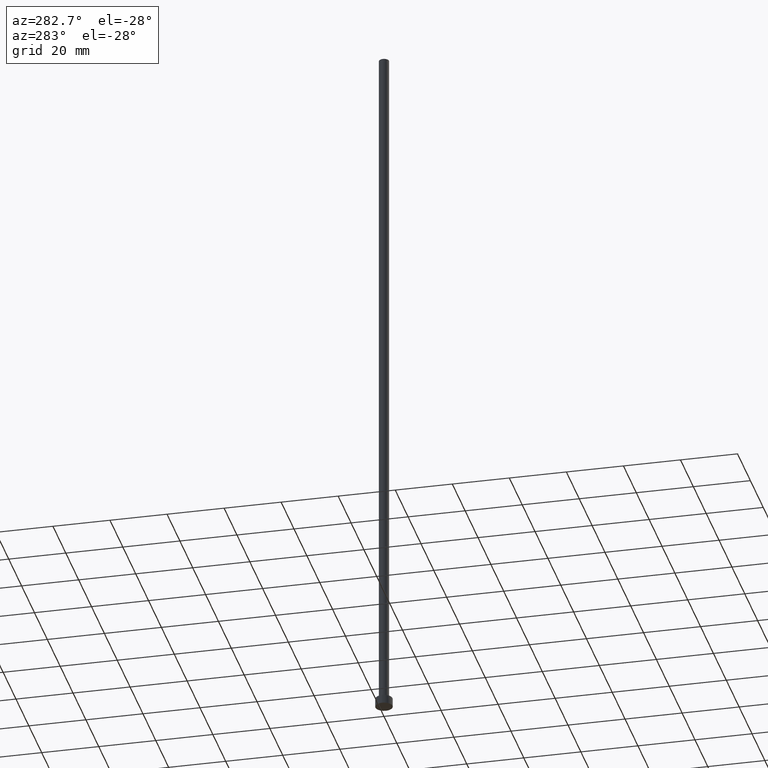
[diagram: clean part render]
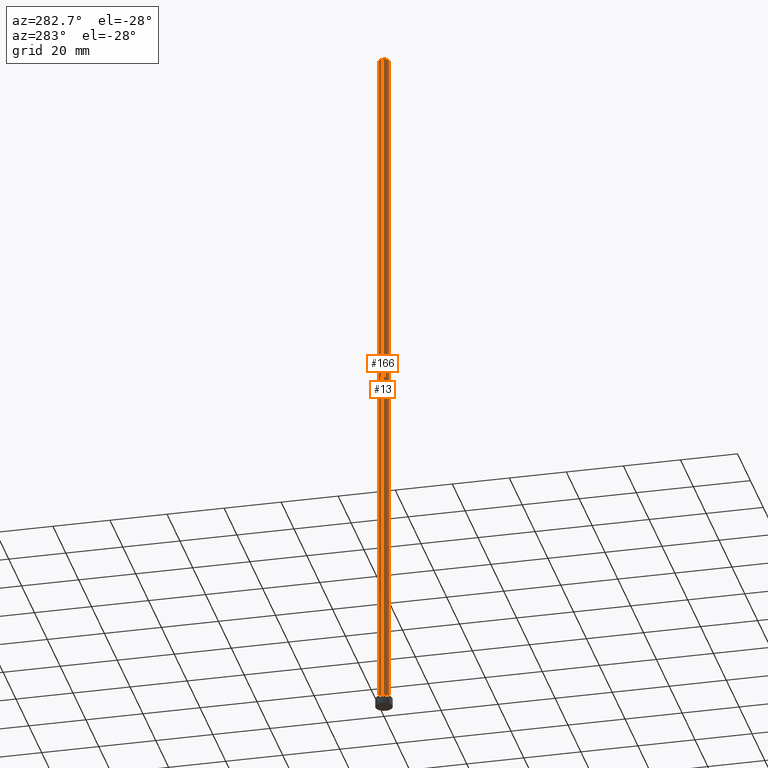
[diagram: same view with one multi-face feature highlighted, each face labeled with its STEP entity id]
A machine part, auxiliary view. The highlighted faces form ONE feature: a constant-radius fillet chain: 2 tangent blend faces with common blend radius 1.75 mm. The faces share edges in the B-rep.
Their STEP definitions:
[1] entity #13 (Cylinder):
#4 = VECTOR ( 'NONE', #51, 1000.000000000000000 ) ;
#13 = ADVANCED_FACE ( 'NONE', ( #221 ), #102, .T. ) ;
#16 = CIRCLE ( 'NONE', #62, 1.750000000000000000 ) ;
#19 = AXIS2_PLACEMENT_3D ( 'NONE', #139, #242, #47 ) ;
#26 = VERTEX_POINT ( 'NONE', #138 ) ;
#29 = DIRECTION ( 'NONE',  ( 1.000000000000000000, 0.000000000000000000, 0.000000000000000000 ) ) ;
#31 = EDGE_CURVE ( 'NONE', #95, #26, #130, .T. ) ;
#33 = LINE ( 'NONE', #163, #4 ) ;
#39 = AXIS2_PLACEMENT_3D ( 'NONE', #173, #107, #237 ) ;
#47 = DIRECTION ( 'NONE',  ( 1.000000000000000000, 0.000000000000000000, 0.000000000000000000 ) ) ;
#51 = DIRECTION ( 'NONE',  ( -0.000000000000000000, -0.000000000000000000, -1.000000000000000000 ) ) ;
#62 = AXIS2_PLACEMENT_3D ( 'NONE', #90, #126, #29 ) ;
#64 = EDGE_LOOP ( 'NONE', ( #165, #208, #218, #100 ) ) ;
#85 = EDGE_CURVE ( 'NONE', #95, #89, #33, .T. ) ;
#89 = VERTEX_POINT ( 'NONE', #225 ) ;
#90 = CARTESIAN_POINT ( 'NONE',  ( 0.000000000000000000, 0.000000000000000000, 3.000000000000000000 ) ) ;
#91 = CARTESIAN_POINT ( 'NONE',  ( -1.750000000000000000, 0.000000000000000000, 3.000000000000000000 ) ) ;
#95 = VERTEX_POINT ( 'NONE', #129 ) ;
#100 = ORIENTED_EDGE ( 'NONE', *, *, #178, .F. ) ;
#102 = CYLINDRICAL_SURFACE ( 'NONE', #39, 1.750000000000000000 ) ;
#107 = DIRECTION ( 'NONE',  ( -0.000000000000000000, -0.000000000000000000, -1.000000000000000000 ) ) ;
#126 = DIRECTION ( 'NONE',  ( 0.000000000000000000, 0.000000000000000000, 1.000000000000000000 ) ) ;
#127 = DIRECTION ( 'NONE',  ( -0.000000000000000000, -0.000000000000000000, -1.000000000000000000 ) ) ;
#129 = CARTESIAN_POINT ( 'NONE',  ( 1.750000000000000000, 2.143131898507868297E-16, 250.0000000000000000 ) ) ;
#130 = CIRCLE ( 'NONE', #19, 1.750000000000000000 ) ;
#138 = CARTESIAN_POINT ( 'NONE',  ( -1.750000000000000000, 0.000000000000000000, 250.0000000000000000 ) ) ;
#139 = CARTESIAN_POINT ( 'NONE',  ( 0.000000000000000000, 0.000000000000000000, 250.0000000000000000 ) ) ;
#163 = CARTESIAN_POINT ( 'NONE',  ( 1.750000000000000000, 2.143131898507868297E-16, 250.0000000000000000 ) ) ;
#165 = ORIENTED_EDGE ( 'NONE', *, *, #31, .F. ) ;
#172 = EDGE_CURVE ( 'NONE', #89, #190, #16, .T. ) ;
#173 = CARTESIAN_POINT ( 'NONE',  ( 0.000000000000000000, 0.000000000000000000, 250.0000000000000000 ) ) ;
#178 = EDGE_CURVE ( 'NONE', #26, #190, #226, .T. ) ;
#190 = VERTEX_POINT ( 'NONE', #91 ) ;
#191 = VECTOR ( 'NONE', #127, 1000.000000000000000 ) ;
#199 = CARTESIAN_POINT ( 'NONE',  ( -1.750000000000000000, 0.000000000000000000, 250.0000000000000000 ) ) ;
#208 = ORIENTED_EDGE ( 'NONE', *, *, #85, .T. ) ;
#218 = ORIENTED_EDGE ( 'NONE', *, *, #172, .T. ) ;
#221 = FACE_OUTER_BOUND ( 'NONE', #64, .T. ) ;
#225 = CARTESIAN_POINT ( 'NONE',  ( 1.750000000000000000, 2.143131898507868297E-16, 3.000000000000000000 ) ) ;
#226 = LINE ( 'NONE', #199, #191 ) ;
#237 = DIRECTION ( 'NONE',  ( -1.000000000000000000, 0.000000000000000000, 0.000000000000000000 ) ) ;
#242 = DIRECTION ( 'NONE',  ( 0.000000000000000000, 0.000000000000000000, 1.000000000000000000 ) ) ;
[2] entity #166 (Cylinder):
#4 = VECTOR ( 'NONE', #51, 1000.000000000000000 ) ;
#11 = CARTESIAN_POINT ( 'NONE',  ( 0.000000000000000000, 0.000000000000000000, 250.0000000000000000 ) ) ;
#23 = EDGE_CURVE ( 'NONE', #26, #95, #88, .T. ) ;
#24 = ORIENTED_EDGE ( 'NONE', *, *, #85, .F. ) ;
#26 = VERTEX_POINT ( 'NONE', #138 ) ;
#33 = LINE ( 'NONE', #163, #4 ) ;
#40 = ORIENTED_EDGE ( 'NONE', *, *, #79, .T. ) ;
#51 = DIRECTION ( 'NONE',  ( -0.000000000000000000, -0.000000000000000000, -1.000000000000000000 ) ) ;
#65 = CARTESIAN_POINT ( 'NONE',  ( 0.000000000000000000, 0.000000000000000000, 250.0000000000000000 ) ) ;
#67 = CARTESIAN_POINT ( 'NONE',  ( 0.000000000000000000, 0.000000000000000000, 3.000000000000000000 ) ) ;
#77 = ORIENTED_EDGE ( 'NONE', *, *, #23, .F. ) ;
#78 = AXIS2_PLACEMENT_3D ( 'NONE', #11, #249, #162 ) ;
#79 = EDGE_CURVE ( 'NONE', #190, #89, #145, .T. ) ;
#84 = DIRECTION ( 'NONE',  ( 0.000000000000000000, 0.000000000000000000, 1.000000000000000000 ) ) ;
#85 = EDGE_CURVE ( 'NONE', #95, #89, #33, .T. ) ;
#87 = DIRECTION ( 'NONE',  ( 0.000000000000000000, 0.000000000000000000, 1.000000000000000000 ) ) ;
#88 = CIRCLE ( 'NONE', #188, 1.750000000000000000 ) ;
#89 = VERTEX_POINT ( 'NONE', #225 ) ;
#91 = CARTESIAN_POINT ( 'NONE',  ( -1.750000000000000000, 0.000000000000000000, 3.000000000000000000 ) ) ;
#95 = VERTEX_POINT ( 'NONE', #129 ) ;
#114 = FACE_OUTER_BOUND ( 'NONE', #142, .T. ) ;
#118 = ORIENTED_EDGE ( 'NONE', *, *, #178, .T. ) ;
#127 = DIRECTION ( 'NONE',  ( -0.000000000000000000, -0.000000000000000000, -1.000000000000000000 ) ) ;
#129 = CARTESIAN_POINT ( 'NONE',  ( 1.750000000000000000, 2.143131898507868297E-16, 250.0000000000000000 ) ) ;
#138 = CARTESIAN_POINT ( 'NONE',  ( -1.750000000000000000, 0.000000000000000000, 250.0000000000000000 ) ) ;
#142 = EDGE_LOOP ( 'NONE', ( #24, #77, #118, #40 ) ) ;
#144 = CYLINDRICAL_SURFACE ( 'NONE', #78, 1.750000000000000000 ) ;
#145 = CIRCLE ( 'NONE', #174, 1.750000000000000000 ) ;
#160 = DIRECTION ( 'NONE',  ( 1.000000000000000000, 0.000000000000000000, 0.000000000000000000 ) ) ;
#162 = DIRECTION ( 'NONE',  ( -1.000000000000000000, 0.000000000000000000, 0.000000000000000000 ) ) ;
#163 = CARTESIAN_POINT ( 'NONE',  ( 1.750000000000000000, 2.143131898507868297E-16, 250.0000000000000000 ) ) ;
#166 = ADVANCED_FACE ( 'NONE', ( #114 ), #144, .T. ) ;
#174 = AXIS2_PLACEMENT_3D ( 'NONE', #67, #87, #241 ) ;
#178 = EDGE_CURVE ( 'NONE', #26, #190, #226, .T. ) ;
#188 = AXIS2_PLACEMENT_3D ( 'NONE', #65, #84, #160 ) ;
#190 = VERTEX_POINT ( 'NONE', #91 ) ;
#191 = VECTOR ( 'NONE', #127, 1000.000000000000000 ) ;
#199 = CARTESIAN_POINT ( 'NONE',  ( -1.750000000000000000, 0.000000000000000000, 250.0000000000000000 ) ) ;
#225 = CARTESIAN_POINT ( 'NONE',  ( 1.750000000000000000, 2.143131898507868297E-16, 3.000000000000000000 ) ) ;
#226 = LINE ( 'NONE', #199, #191 ) ;
#241 = DIRECTION ( 'NONE',  ( 1.000000000000000000, 0.000000000000000000, 0.000000000000000000 ) ) ;
#249 = DIRECTION ( 'NONE',  ( -0.000000000000000000, -0.000000000000000000, -1.000000000000000000 ) ) ;